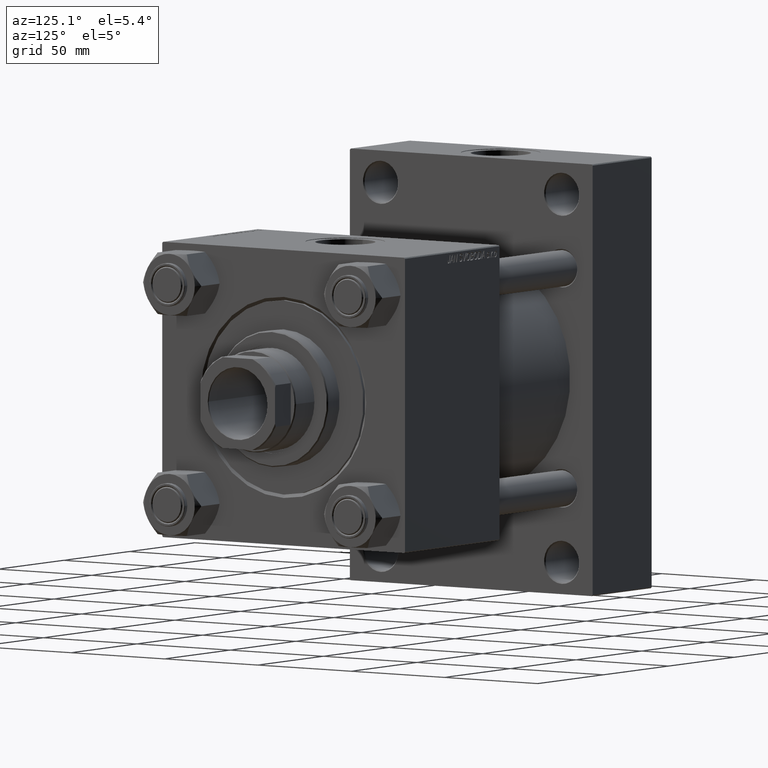
[diagram: clean part render]
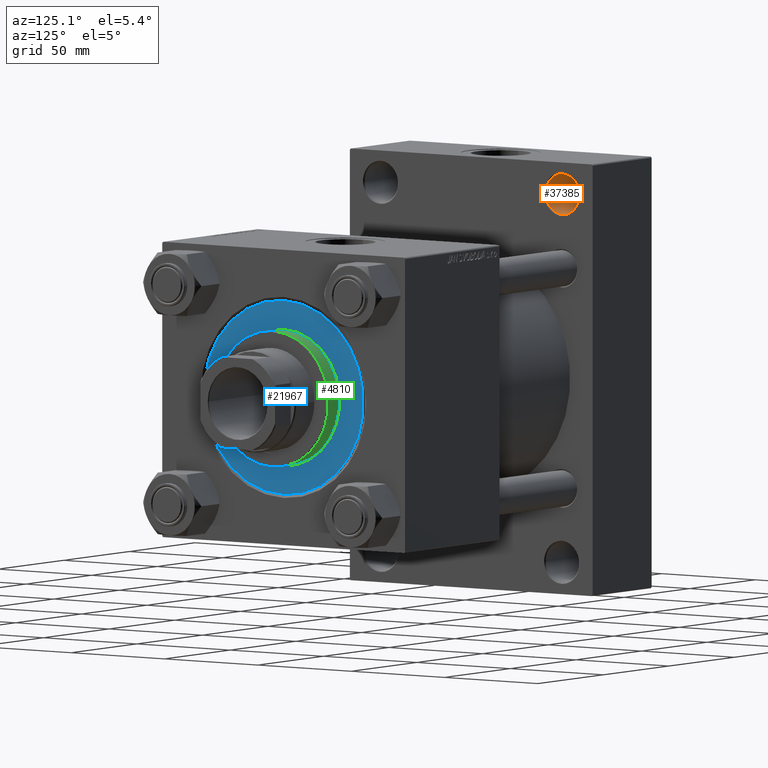
[diagram: same view with three faces highlighted in distinct colors, each labeled with its STEP entity id]
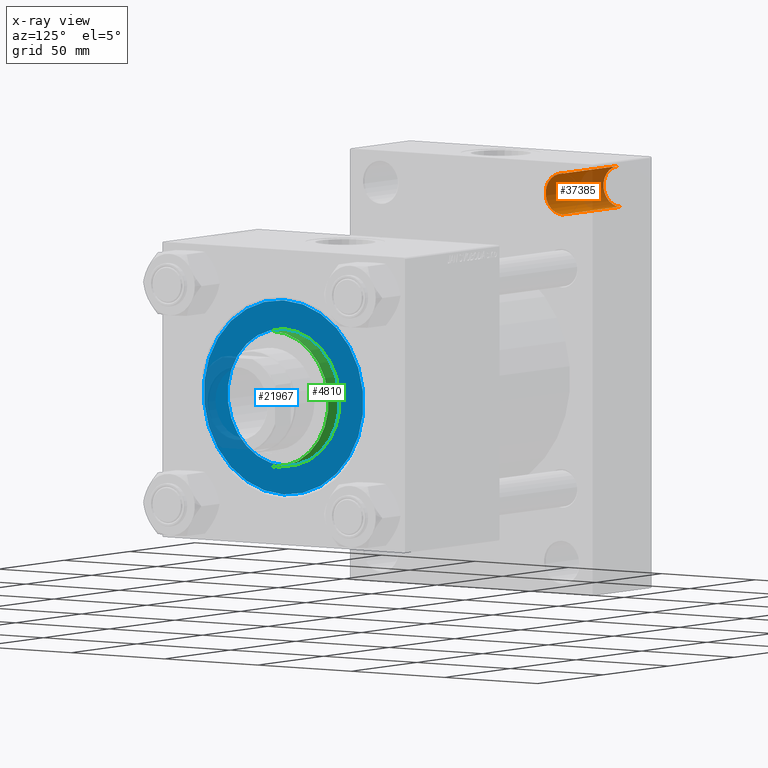
[diagram: x-ray of the same camera — body ghosted, the three highlighted faces saturated]
A machine part, auxiliary view with three faces highlighted in distinct colors.
The next image is the same camera in x-ray (body ghosted, the three faces saturated) — at least one of them is partly hidden behind the body in this view.
Their STEP definitions:

[orange] entity #37385 — the highlighted cylindrical surface (edge-blend (fillet) strip) has radius 9 mm, axis along (-1, -0, -0).
#382 = LINE ( 'NONE', #19512, #1348 ) ;
#405 = FACE_OUTER_BOUND ( 'NONE', #42383, .T. ) ;
#668 = ORIENTED_EDGE ( 'NONE', *, *, #43809, .T. ) ;
#907 = CYLINDRICAL_SURFACE ( 'NONE', #41848, 8.999999999999994671 ) ;
#1348 = VECTOR ( 'NONE', #11881, 1000.000000000000000 ) ;
#2475 = LINE ( 'NONE', #49650, #32166 ) ;
#2849 = DIRECTION ( 'NONE',  ( 0.000000000000000000, 0.000000000000000000, 1.000000000000000000 ) ) ;
#8320 = DIRECTION ( 'NONE',  ( -1.000000000000000000, -0.000000000000000000, -0.000000000000000000 ) ) ;
#8493 = CIRCLE ( 'NONE', #40246, 8.999999999999994671 ) ;
#9517 = DIRECTION ( 'NONE',  ( 1.000000000000000000, 0.000000000000000000, 0.000000000000000000 ) ) ;
#10991 = EDGE_CURVE ( 'NONE', #18608, #34234, #2475, .T. ) ;
#11881 = DIRECTION ( 'NONE',  ( -1.000000000000000000, -0.000000000000000000, -0.000000000000000000 ) ) ;
#13034 = CARTESIAN_POINT ( 'NONE',  ( 0.4999999999999588107, 48.50000000000000000, 72.00000000000001421 ) ) ;
#14103 = CARTESIAN_POINT ( 'NONE',  ( 44.49999999999996447, 48.50000000000000000, 81.00000000000000000 ) ) ;
#15103 = CARTESIAN_POINT ( 'NONE',  ( 0.4999999999999588107, 48.50000000000000000, 81.00000000000000000 ) ) ;
#15964 = CARTESIAN_POINT ( 'NONE',  ( 70.45584412271568908, 48.50000000000000000, 81.00000000000000000 ) ) ;
#16918 = DIRECTION ( 'NONE',  ( 0.000000000000000000, 0.000000000000000000, 1.000000000000000000 ) ) ;
#18608 = VERTEX_POINT ( 'NONE', #45621 ) ;
#19512 = CARTESIAN_POINT ( 'NONE',  ( 70.45584412271568908, 48.50000000000000000, 72.00000000000001421 ) ) ;
#20668 = CIRCLE ( 'NONE', #43499, 8.999999999999994671 ) ;
#23112 = ORIENTED_EDGE ( 'NONE', *, *, #38853, .T. ) ;
#23987 = ORIENTED_EDGE ( 'NONE', *, *, #37959, .T. ) ;
#27101 = VERTEX_POINT ( 'NONE', #31212 ) ;
#27681 = DIRECTION ( 'NONE',  ( 0.000000000000000000, 0.000000000000000000, 1.000000000000000000 ) ) ;
#30402 = CARTESIAN_POINT ( 'NONE',  ( 0.4999999999999588107, 48.50000000000000000, 90.00000000000000000 ) ) ;
#30768 = DIRECTION ( 'NONE',  ( -1.000000000000000000, -0.000000000000000000, -0.000000000000000000 ) ) ;
#31212 = CARTESIAN_POINT ( 'NONE',  ( 44.49999999999996447, 48.50000000000000000, 72.00000000000001421 ) ) ;
#32166 = VECTOR ( 'NONE', #30768, 1000.000000000000000 ) ;
#34234 = VERTEX_POINT ( 'NONE', #30402 ) ;
#37385 = ADVANCED_FACE ( 'NONE', ( #405 ), #907, .F. ) ;
#37959 = EDGE_CURVE ( 'NONE', #39578, #34234, #20668, .T. ) ;
#38853 = EDGE_CURVE ( 'NONE', #18608, #27101, #8493, .T. ) ;
#39578 = VERTEX_POINT ( 'NONE', #13034 ) ;
#40246 = AXIS2_PLACEMENT_3D ( 'NONE', #14103, #9517, #16918 ) ;
#41848 = AXIS2_PLACEMENT_3D ( 'NONE', #15964, #8320, #27681 ) ;
#42383 = EDGE_LOOP ( 'NONE', ( #23112, #668, #23987, #48221 ) ) ;
#43499 = AXIS2_PLACEMENT_3D ( 'NONE', #15103, #45967, #2849 ) ;
#43809 = EDGE_CURVE ( 'NONE', #27101, #39578, #382, .T. ) ;
#45621 = CARTESIAN_POINT ( 'NONE',  ( 44.49999999999996447, 48.50000000000000000, 90.00000000000000000 ) ) ;
#45967 = DIRECTION ( 'NONE',  ( -1.000000000000000000, 0.000000000000000000, 0.000000000000000000 ) ) ;
#48221 = ORIENTED_EDGE ( 'NONE', *, *, #10991, .F. ) ;
#49650 = CARTESIAN_POINT ( 'NONE',  ( 70.45584412271568908, 48.50000000000000000, 90.00000000000000000 ) ) ;

[blue] entity #21967 — the highlighted planar face has unit normal (1, 0, 0).
#1305 = EDGE_CURVE ( 'NONE', #11529, #32087, #14846, .T. ) ;
#3135 = VERTEX_POINT ( 'NONE', #48252 ) ;
#4989 = PLANE ( 'NONE',  #24475 ) ;
#5750 = DIRECTION ( 'NONE',  ( 1.000000000000000000, 0.000000000000000000, 0.000000000000000000 ) ) ;
#5967 = DIRECTION ( 'NONE',  ( 1.000000000000000000, 0.000000000000000000, 0.000000000000000000 ) ) ;
#8310 = CARTESIAN_POINT ( 'NONE',  ( 0.000000000000000000, 0.000000000000000000, 28.69999999999999929 ) ) ;
#9143 = AXIS2_PLACEMENT_3D ( 'NONE', #26069, #20117, #23185 ) ;
#9296 = ORIENTED_EDGE ( 'NONE', *, *, #39383, .F. ) ;
#10465 = EDGE_LOOP ( 'NONE', ( #9296, #27801 ) ) ;
#10535 = CARTESIAN_POINT ( 'NONE',  ( -30.00000000000000000, 0.000000000000000000, 28.69999999999999929 ) ) ;
#11529 = VERTEX_POINT ( 'NONE', #14665 ) ;
#13132 = AXIS2_PLACEMENT_3D ( 'NONE', #26603, #41936, #25862 ) ;
#14665 = CARTESIAN_POINT ( 'NONE',  ( 30.00000000000000000, 3.673940397442059178E-15, 28.69999999999999929 ) ) ;
#14846 = CIRCLE ( 'NONE', #42566, 30.00000000000000000 ) ;
#17472 = DIRECTION ( 'NONE',  ( 0.000000000000000000, 0.000000000000000000, 1.000000000000000000 ) ) ;
#18188 = CARTESIAN_POINT ( 'NONE',  ( 0.000000000000000000, 0.000000000000000000, 28.69999999999999929 ) ) ;
#20117 = DIRECTION ( 'NONE',  ( 0.000000000000000000, 0.000000000000000000, 1.000000000000000000 ) ) ;
#20531 = DIRECTION ( 'NONE',  ( 0.000000000000000000, 0.000000000000000000, 1.000000000000000000 ) ) ;
#21967 = ADVANCED_FACE ( 'NONE', ( #24108, #39688 ), #4989, .T. ) ;
#23185 = DIRECTION ( 'NONE',  ( 1.000000000000000000, 0.000000000000000000, 0.000000000000000000 ) ) ;
#24108 = FACE_BOUND ( 'NONE', #10465, .T. ) ;
#24360 = DIRECTION ( 'NONE',  ( 1.000000000000000000, 0.000000000000000000, -0.000000000000000000 ) ) ;
#24475 = AXIS2_PLACEMENT_3D ( 'NONE', #8310, #20531, #24360 ) ;
#25006 = ORIENTED_EDGE ( 'NONE', *, *, #28238, .T. ) ;
#25862 = DIRECTION ( 'NONE',  ( 1.000000000000000000, 0.000000000000000000, 0.000000000000000000 ) ) ;
#26069 = CARTESIAN_POINT ( 'NONE',  ( 0.000000000000000000, 0.000000000000000000, 28.69999999999999929 ) ) ;
#26603 = CARTESIAN_POINT ( 'NONE',  ( 0.000000000000000000, 0.000000000000000000, 28.69999999999999929 ) ) ;
#26683 = ORIENTED_EDGE ( 'NONE', *, *, #31418, .T. ) ;
#27801 = ORIENTED_EDGE ( 'NONE', *, *, #1305, .F. ) ;
#28238 = EDGE_CURVE ( 'NONE', #46281, #3135, #33510, .T. ) ;
#29170 = DIRECTION ( 'NONE',  ( 0.000000000000000000, 0.000000000000000000, 1.000000000000000000 ) ) ;
#31418 = EDGE_CURVE ( 'NONE', #3135, #46281, #33622, .T. ) ;
#32087 = VERTEX_POINT ( 'NONE', #10535 ) ;
#33390 = CARTESIAN_POINT ( 'NONE',  ( -42.75000000000000000, 0.000000000000000000, 28.69999999999999929 ) ) ;
#33510 = CIRCLE ( 'NONE', #13132, 42.75000000000000000 ) ;
#33622 = CIRCLE ( 'NONE', #9143, 42.75000000000000000 ) ;
#39383 = EDGE_CURVE ( 'NONE', #32087, #11529, #40278, .T. ) ;
#39688 = FACE_OUTER_BOUND ( 'NONE', #47608, .T. ) ;
#40278 = CIRCLE ( 'NONE', #41131, 30.00000000000000000 ) ;
#41131 = AXIS2_PLACEMENT_3D ( 'NONE', #44778, #17472, #5750 ) ;
#41936 = DIRECTION ( 'NONE',  ( 0.000000000000000000, 0.000000000000000000, 1.000000000000000000 ) ) ;
#42566 = AXIS2_PLACEMENT_3D ( 'NONE', #18188, #29170, #5967 ) ;
#44778 = CARTESIAN_POINT ( 'NONE',  ( 0.000000000000000000, 0.000000000000000000, 28.69999999999999929 ) ) ;
#46281 = VERTEX_POINT ( 'NONE', #33390 ) ;
#47608 = EDGE_LOOP ( 'NONE', ( #25006, #26683 ) ) ;
#48252 = CARTESIAN_POINT ( 'NONE',  ( 42.75000000000000000, 5.235365066354935472E-15, 28.69999999999999929 ) ) ;

[green] entity #4810 — the highlighted cylindrical surface (partial cylindrical patch) has radius 30 mm, axis along (-1, -0, 0).
#691 = VECTOR ( 'NONE', #31961, 1000.000000000000000 ) ;
#1305 = EDGE_CURVE ( 'NONE', #11529, #32087, #14846, .T. ) ;
#4103 = EDGE_LOOP ( 'NONE', ( #29919, #37118, #22485, #49449 ) ) ;
#4810 = ADVANCED_FACE ( 'NONE', ( #7435 ), #26297, .T. ) ;
#4870 = EDGE_CURVE ( 'NONE', #14723, #11529, #11011, .T. ) ;
#5967 = DIRECTION ( 'NONE',  ( 1.000000000000000000, 0.000000000000000000, 0.000000000000000000 ) ) ;
#6426 = EDGE_CURVE ( 'NONE', #38627, #14723, #37744, .T. ) ;
#7430 = CARTESIAN_POINT ( 'NONE',  ( 30.00000000000000000, 3.673940397442059178E-15, 37.19999999999998863 ) ) ;
#7435 = FACE_OUTER_BOUND ( 'NONE', #4103, .T. ) ;
#10535 = CARTESIAN_POINT ( 'NONE',  ( -30.00000000000000000, 0.000000000000000000, 28.69999999999999929 ) ) ;
#10806 = AXIS2_PLACEMENT_3D ( 'NONE', #27300, #42896, #22213 ) ;
#11011 = LINE ( 'NONE', #42141, #40957 ) ;
#11093 = CARTESIAN_POINT ( 'NONE',  ( -30.00000000000000000, 0.000000000000000000, 37.19999999999998863 ) ) ;
#11529 = VERTEX_POINT ( 'NONE', #14665 ) ;
#14665 = CARTESIAN_POINT ( 'NONE',  ( 30.00000000000000000, 3.673940397442059178E-15, 28.69999999999999929 ) ) ;
#14723 = VERTEX_POINT ( 'NONE', #7430 ) ;
#14846 = CIRCLE ( 'NONE', #42566, 30.00000000000000000 ) ;
#15749 = AXIS2_PLACEMENT_3D ( 'NONE', #44288, #25139, #48356 ) ;
#18188 = CARTESIAN_POINT ( 'NONE',  ( 0.000000000000000000, 0.000000000000000000, 28.69999999999999929 ) ) ;
#18901 = DIRECTION ( 'NONE',  ( -0.000000000000000000, -0.000000000000000000, -1.000000000000000000 ) ) ;
#20968 = LINE ( 'NONE', #35800, #691 ) ;
#22213 = DIRECTION ( 'NONE',  ( -1.000000000000000000, 0.000000000000000000, 0.000000000000000000 ) ) ;
#22485 = ORIENTED_EDGE ( 'NONE', *, *, #1305, .T. ) ;
#25139 = DIRECTION ( 'NONE',  ( 0.000000000000000000, 0.000000000000000000, -1.000000000000000000 ) ) ;
#26297 = CYLINDRICAL_SURFACE ( 'NONE', #10806, 30.00000000000000000 ) ;
#27300 = CARTESIAN_POINT ( 'NONE',  ( 0.000000000000000000, 0.000000000000000000, 37.69999999999999574 ) ) ;
#29170 = DIRECTION ( 'NONE',  ( 0.000000000000000000, 0.000000000000000000, 1.000000000000000000 ) ) ;
#29919 = ORIENTED_EDGE ( 'NONE', *, *, #6426, .T. ) ;
#31961 = DIRECTION ( 'NONE',  ( -0.000000000000000000, -0.000000000000000000, -1.000000000000000000 ) ) ;
#32087 = VERTEX_POINT ( 'NONE', #10535 ) ;
#35800 = CARTESIAN_POINT ( 'NONE',  ( -30.00000000000000000, 0.000000000000000000, 37.69999999999999574 ) ) ;
#37118 = ORIENTED_EDGE ( 'NONE', *, *, #4870, .T. ) ;
#37744 = CIRCLE ( 'NONE', #15749, 30.00000000000000000 ) ;
#38627 = VERTEX_POINT ( 'NONE', #11093 ) ;
#40957 = VECTOR ( 'NONE', #18901, 1000.000000000000000 ) ;
#42141 = CARTESIAN_POINT ( 'NONE',  ( 30.00000000000000000, 3.673940397442059178E-15, 37.69999999999999574 ) ) ;
#42566 = AXIS2_PLACEMENT_3D ( 'NONE', #18188, #29170, #5967 ) ;
#42896 = DIRECTION ( 'NONE',  ( -0.000000000000000000, -0.000000000000000000, -1.000000000000000000 ) ) ;
#44288 = CARTESIAN_POINT ( 'NONE',  ( 0.000000000000000000, 0.000000000000000000, 37.19999999999998863 ) ) ;
#48356 = DIRECTION ( 'NONE',  ( 1.000000000000000000, 0.000000000000000000, 0.000000000000000000 ) ) ;
#49449 = ORIENTED_EDGE ( 'NONE', *, *, #49563, .F. ) ;
#49563 = EDGE_CURVE ( 'NONE', #38627, #32087, #20968, .T. ) ;